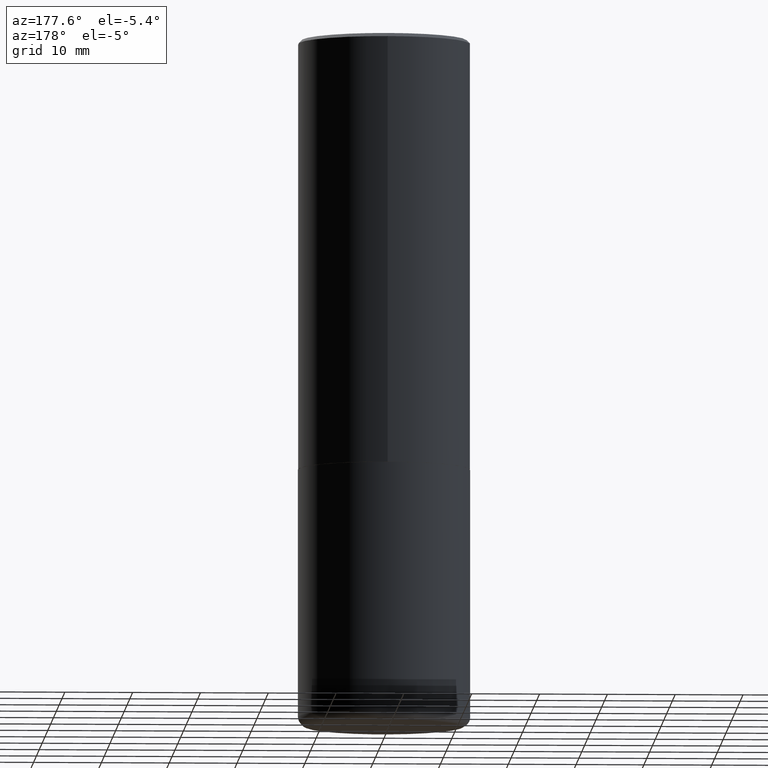
[diagram: clean part render]
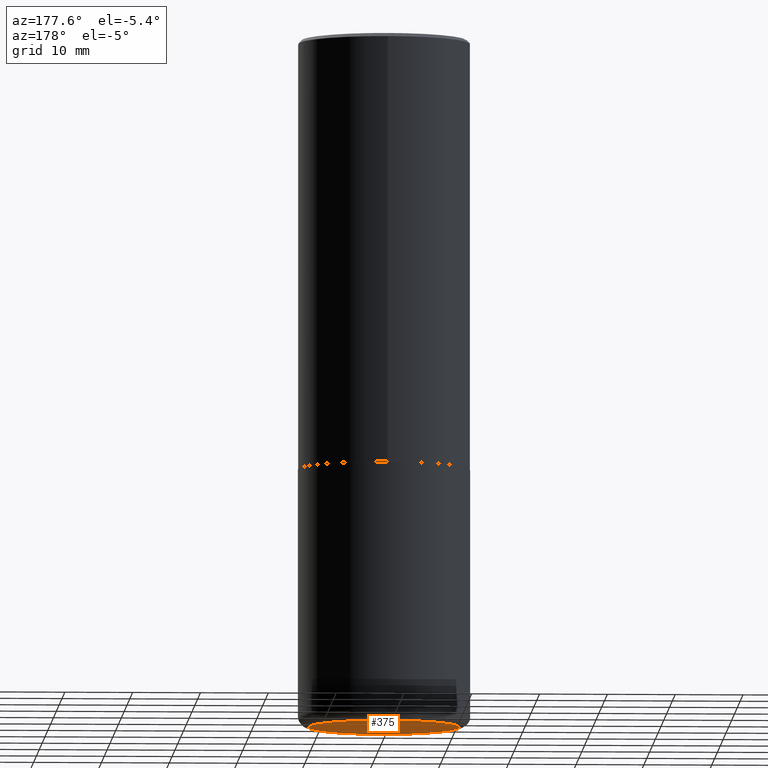
[diagram: same view with one face highlighted and labeled with its STEP entity id]
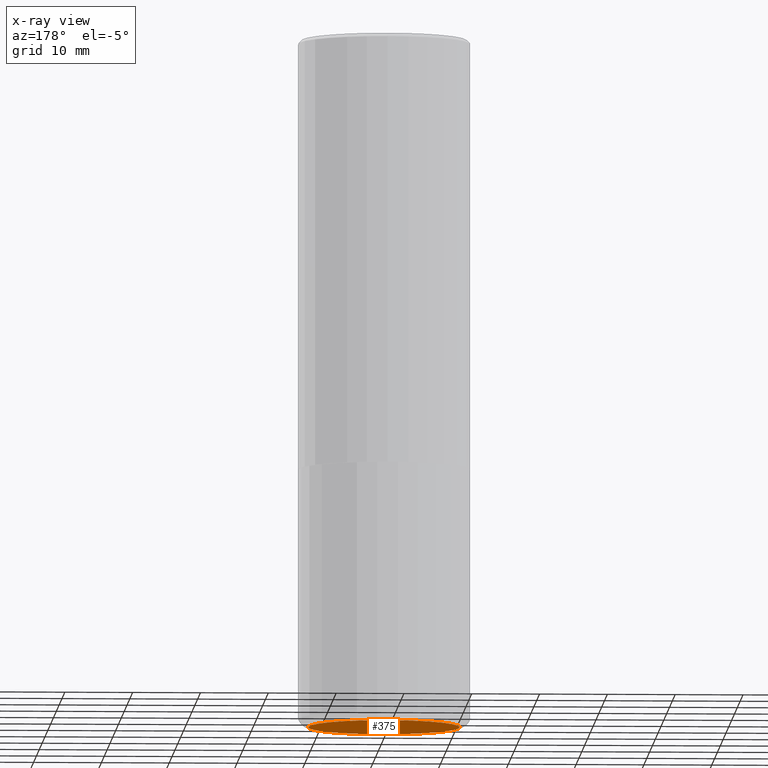
[diagram: x-ray of the same camera — body ghosted, the highlighted face saturated]
A machine part, auxiliary view. The second image highlights one B-rep face of the part: STEP entity #375.
The next image is the same camera in x-ray: the body ghosted, the highlighted face saturated — about 0% of this face is hidden behind the body in this view.
In plain terms, the highlighted planar face has unit normal (0, -0, -1).
Its self-contained STEP definition (entity closure, byte-faithful):
#50 = CARTESIAN_POINT ( 'NONE',  ( 0.4400000000000000022, -1.703842893355454063E-14, -4.000000000000000888 ) ) ;
#52 = DIRECTION ( 'NONE',  ( -2.445468806185136597E-29, 3.491481338843145583E-15, 1.000000000000000000 ) ) ;
#63 = DIRECTION ( 'NONE',  ( -1.000000000000000000, 6.982962677686265922E-15, -4.876176775795935793E-29 ) ) ;
#81 = CARTESIAN_POINT ( 'NONE',  ( 9.781875224740547508E-29, -1.396592535537258391E-14, -4.000000000000000888 ) ) ;
#87 = AXIS2_PLACEMENT_3D ( 'NONE', #81, #205, #335 ) ;
#124 = VERTEX_POINT ( 'NONE', #50 ) ;
#130 = DIRECTION ( 'NONE',  ( 2.438088387897960049E-29, -3.491481338843145188E-15, -1.000000000000000000 ) ) ;
#181 = DIRECTION ( 'NONE',  ( 1.000000000000000000, -6.982962677686266711E-15, 0.000000000000000000 ) ) ;
#190 = ORIENTED_EDGE ( 'NONE', *, *, #225, .F. ) ;
#205 = DIRECTION ( 'NONE',  ( -2.445468806185136597E-29, 3.491481338843145583E-15, 1.000000000000000000 ) ) ;
#217 = AXIS2_PLACEMENT_3D ( 'NONE', #346, #130, #63 ) ;
#225 = EDGE_CURVE ( 'NONE', #124, #385, #328, .T. ) ;
#268 = CIRCLE ( 'NONE', #87, 0.4400000000000000022 ) ;
#278 = EDGE_CURVE ( 'NONE', #385, #124, #268, .T. ) ;
#288 = EDGE_LOOP ( 'NONE', ( #190, #302 ) ) ;
#302 = ORIENTED_EDGE ( 'NONE', *, *, #278, .F. ) ;
#328 = CIRCLE ( 'NONE', #392, 0.4400000000000000022 ) ;
#335 = DIRECTION ( 'NONE',  ( 1.000000000000000000, -6.982962677686266711E-15, 0.000000000000000000 ) ) ;
#340 = CARTESIAN_POINT ( 'NONE',  ( 9.781875224740547508E-29, -1.396592535537258391E-14, -4.000000000000000888 ) ) ;
#346 = CARTESIAN_POINT ( 'NONE',  ( 6.313440210036972125E-29, -1.893292170748942541E-14, -4.000000000000000000 ) ) ;
#349 = PLANE ( 'NONE',  #217 ) ;
#351 = CARTESIAN_POINT ( 'NONE',  ( -0.4400000000000000022, -1.052163005713481670E-14, -4.000000000000000888 ) ) ;
#375 = ADVANCED_FACE ( 'NONE', ( #384 ), #349, .T. ) ;
#384 = FACE_OUTER_BOUND ( 'NONE', #288, .T. ) ;
#385 = VERTEX_POINT ( 'NONE', #351 ) ;
#392 = AXIS2_PLACEMENT_3D ( 'NONE', #340, #52, #181 ) ;